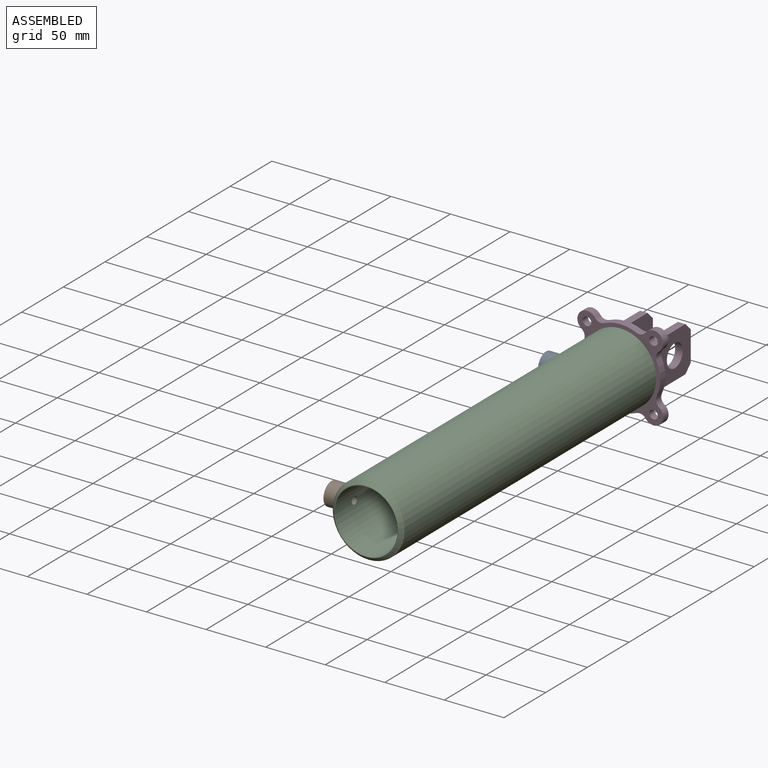
[diagram: assembled view]
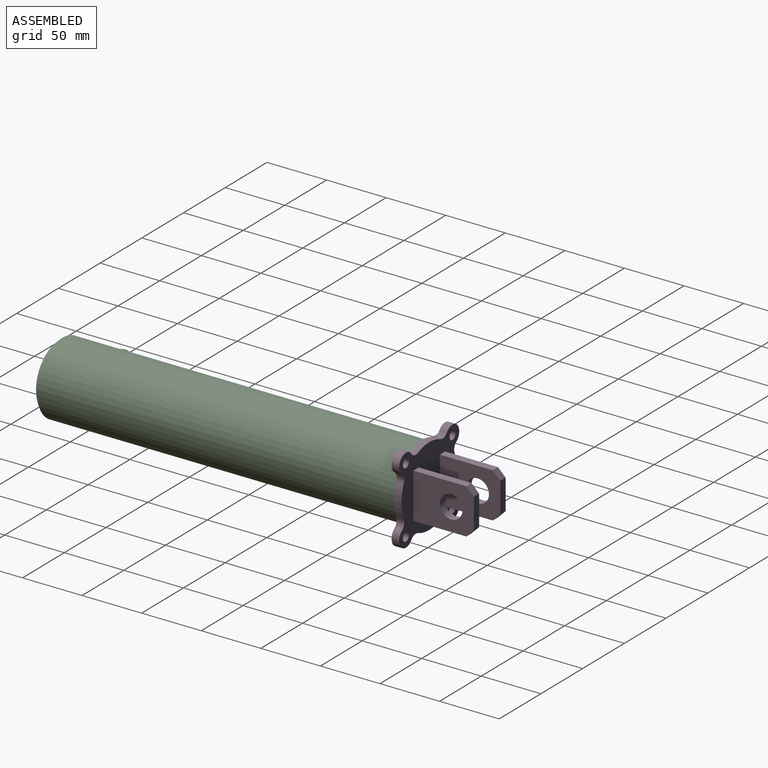
[diagram: assembled view, second angle]
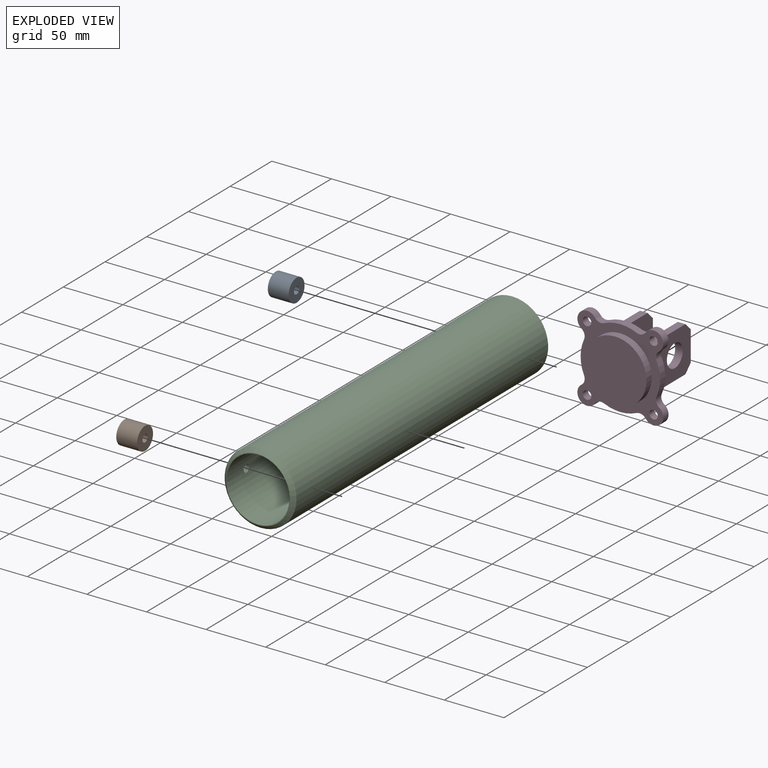
[diagram: exploded view]
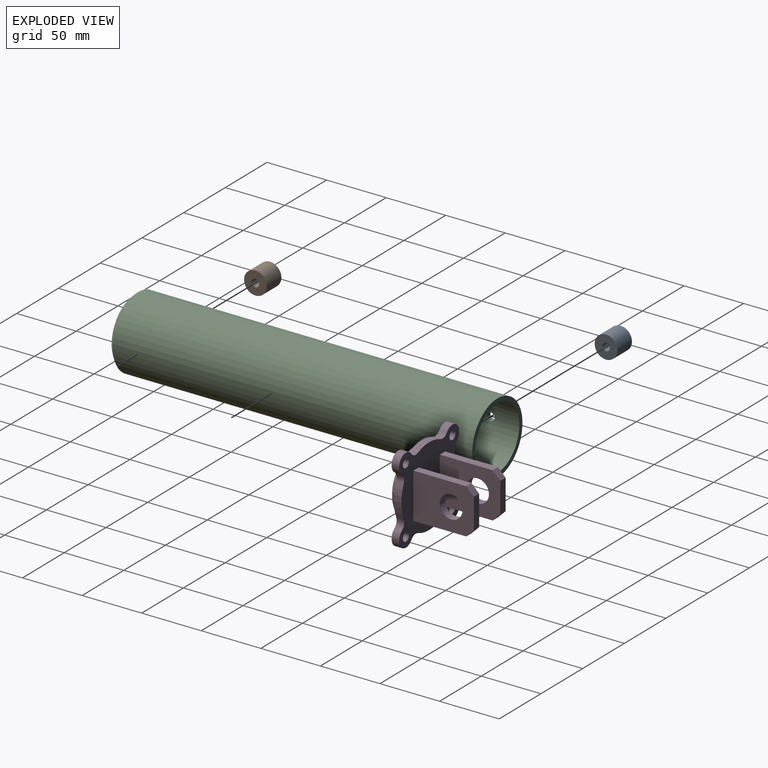
[diagram: exploded view, second angle]
ASSEMBLY  parts=4 mates=3
PART A: 4 faces, bbox 19.1x19.1x17.5 mm
  f0: cylinder r=3.17mm len=17.53mm, axis (0,0,-1), area 349.6mm2, adj f2,f3
  f1: cylinder r=9.53mm len=19.05mm, axis (0,0,-1), area 1048.9mm2, adj f2,f3
  f2: plane 19.05x19.05mm, normal (0,0,1), area 253.4mm2, adj f0,f1
  f3: plane 19.05x19.05mm, normal (0,0,-1), area 253.4mm2, adj f0,f1
PART B: same geometry as A
PART C: 7 faces, bbox 60.3x304.8x60.3 mm
  f0: cylinder r=26.42mm len=304.8mm, axis (0,1,0), area 50526.3mm2, adj f2,f3,f5,f6
  f1: cylinder r=30.16mm len=301.63mm, axis (0,1,0), area 57099.6mm2, adj f2,f4,f5,f6
  f2: plane 60.33x60.33mm, normal (0,-1,0), area 665.9mm2, adj f0,f1
  f3: plane 53.98x53.98mm, normal (0,1,0), area 95.9mm2, adj f0,f4
  f4: cone r=30.16mm half-angle=45deg, axis (0,-1,0), area 806.2mm2, adj f1,f3
  f5: cylinder r=3.17mm len=6.35mm, axis (1,0,0), area 75mm2, adj f0,f1
  f6: cylinder r=3.17mm len=6.35mm, axis (1,0,0), area 75mm2, adj f0,f1
PART D: 40 faces, bbox 72.1x63.5x72.1 mm
  f0: plane 72.09x72.09mm, normal (0,1,0), area 3704.2mm2, adj f1,f2,f3,f4,f5,f6,f7,f8
  f1: cylinder r=8.13mm len=14.76mm, axis (0,1,0), area 179.7mm2, adj f0,f2,f19,f21
  f2: cylinder r=6.35mm len=7.76mm, axis (0,1,0), area 55.3mm2, adj f0,f1,f3,f21
  f3: cylinder r=33.34mm len=27.04mm, axis (0,1,0), area 176.8mm2, adj f0,f2,f4,f21
  f4: cylinder r=6.35mm len=7.76mm, axis (0,1,0), area 55.3mm2, adj f0,f3,f5,f21
  f5: cylinder r=8.13mm len=14.76mm, axis (0,1,0), area 179.7mm2, adj f0,f4,f6,f21
  f6: cylinder r=6.35mm len=7.76mm, axis (0,1,0), area 55.3mm2, adj f0,f5,f7,f21
  f7: cylinder r=33.34mm len=27.04mm, axis (0,1,0), area 176.8mm2, adj f0,f6,f8,f21
  f8: cylinder r=6.35mm len=7.76mm, axis (0,1,0), area 55.3mm2, adj f0,f7,f9,f21
  f9: cylinder r=8.13mm len=14.76mm, axis (0,1,0), area 179.7mm2, adj f0,f8,f10,f21
  f10: cylinder r=6.35mm len=7.76mm, axis (0,1,0), area 55.3mm2, adj f0,f9,f11,f21
  f11: cylinder r=33.34mm len=27.04mm, axis (0,1,0), area 176.8mm2, adj f0,f10,f12,f21
  f12: cylinder r=6.35mm len=7.76mm, axis (0,1,0), area 55.3mm2, adj f0,f11,f13,f21
  f13: cylinder r=8.13mm len=14.76mm, axis (0,1,0), area 179.7mm2, adj f0,f12,f14,f21
  f14: cylinder r=6.35mm len=7.76mm, axis (0,1,0), area 55.3mm2, adj f0,f13,f15,f21
  f15: cylinder r=33.34mm len=27.04mm, axis (0,1,0), area 176.8mm2, adj f0,f14,f19,f21
  f16: cylinder r=3.57mm len=7.14mm, axis (0,1,0), area 142.5mm2, adj f0,f21
  f17: cylinder r=3.57mm len=7.14mm, axis (0,1,0), area 142.5mm2, adj f0,f21
  f18: cylinder r=3.57mm len=7.14mm, axis (0,1,0), area 142.5mm2, adj f0,f21
  f19: cylinder r=6.35mm len=7.76mm, axis (0,1,0), area 55.3mm2, adj f0,f1,f15,f21
  f20: cylinder r=3.57mm len=7.14mm, axis (0,1,0), area 142.5mm2, adj f0,f21
  f21: plane 72.09x72.09mm, normal (0,-1,0), area 1995.8mm2, adj f1,f2,f3,f4,f5,f6,f7,f8
  f22: cylinder r=26.42mm len=52.83mm, axis (0,1,0), area 1054mm2, adj f21,f23
  f23: plane 52.83x52.83mm, normal (0,-1,0), area 2192.2mm2, adj f22
  f24: plane 44.45x6.35mm, normal (0,0,1), area 282.3mm2, adj f0,f25,f27,f37
  f25: plane 50.8x38.1mm, normal (-1,0,0), area 1610.1mm2, adj f0,f24,f26,f28,f34,f37,f39
  f26: plane 44.45x6.35mm, normal (0,0,-1), area 282.3mm2, adj f0,f25,f27,f34
  f27: plane 50.8x38.1mm, normal (1,0,0), area 1610.1mm2, adj f0,f24,f26,f28,f34,f37,f39
  f28: plane 25.4x6.35mm, normal (0,1,0), area 161.3mm2, adj f25,f27,f34,f37
  f29: plane 44.45x6.35mm, normal (0,0,1), area 282.3mm2, adj f0,f30,f32,f36
  f30: plane 50.8x38.1mm, normal (-1,0,0), area 1610.1mm2, adj f0,f29,f31,f33,f35,f36,f38
  f31: plane 44.45x6.35mm, normal (0,0,-1), area 282.3mm2, adj f0,f30,f32,f35
  f32: plane 50.8x38.1mm, normal (1,0,0), area 1610.1mm2, adj f0,f29,f31,f33,f35,f36,f38
  f33: plane 25.4x6.35mm, normal (0,1,0), area 161.3mm2, adj f30,f32,f35,f36
  f34: plane 6.35x6.35mm, normal (0,0.71,-0.71), area 57mm2, adj f25,f26,f27,f28
  f35: plane 6.35x6.35mm, normal (0,0.71,-0.71), area 57mm2, adj f30,f31,f32,f33
  f36: plane 6.35x6.35mm, normal (0,0.71,0.71), area 57mm2, adj f29,f30,f32,f33
  f37: plane 6.35x6.35mm, normal (0,0.71,0.71), area 57mm2, adj f24,f25,f27,f28
  f38: cylinder r=9.53mm len=19.05mm, axis (1,0,0), area 380mm2, adj f30,f32
  f39: cylinder r=9.53mm len=19.05mm, axis (1,0,0), area 380mm2, adj f25,f27
PLACE A rot(axis=(0,-1,0),90deg) t=(-37.51,-85.41,108.3)mm
PLACE B rot(axis=(0,-1,0),90deg) t=(-37.51,-342.59,108.3)mm
PLACE C rot(axis=(1,0,0),180deg) t=(-9.32,-214,108.3)mm
PLACE D t=(-9.32,-55.25,108.3)mm
MATE fastened C.f1 <-> D.f22  axis (0,1,0) through (-9.32,-61.6,108.3)mm
MATE fastened B.f0 <-> C.f5  axis (1,0,0) through (-37.51,-342.59,108.3)mm
MATE fastened A.f1 <-> C.f6  axis (1,0,0) through (-37.51,-85.41,108.3)mm
